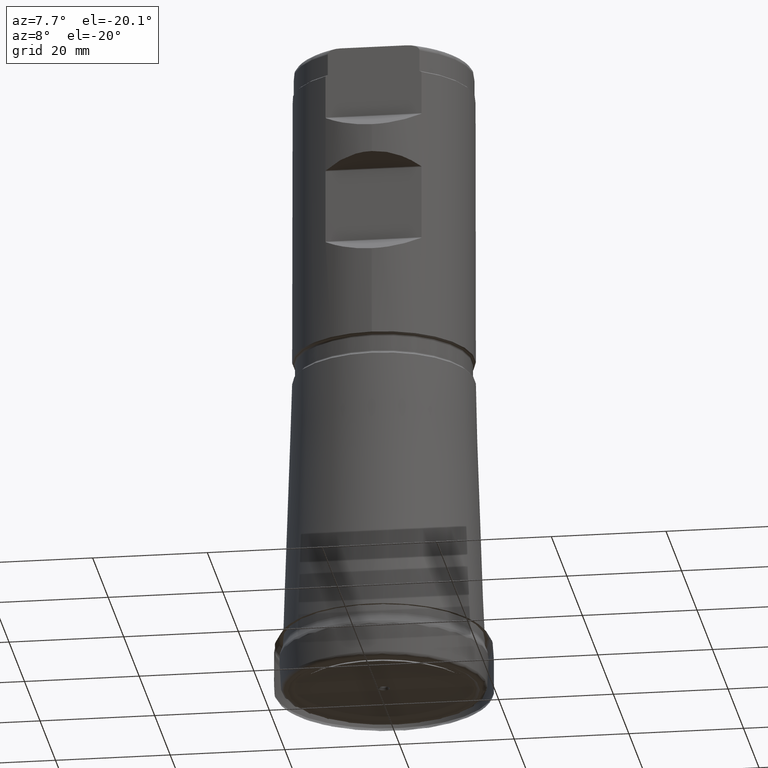
[diagram: clean part render]
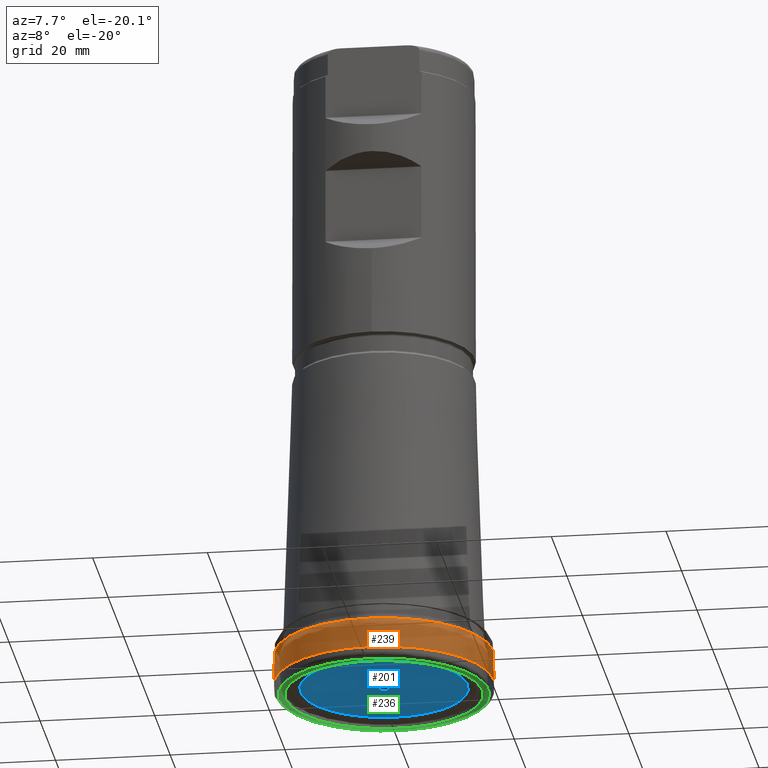
[diagram: same view with three faces highlighted in distinct colors, each labeled with its STEP entity id]
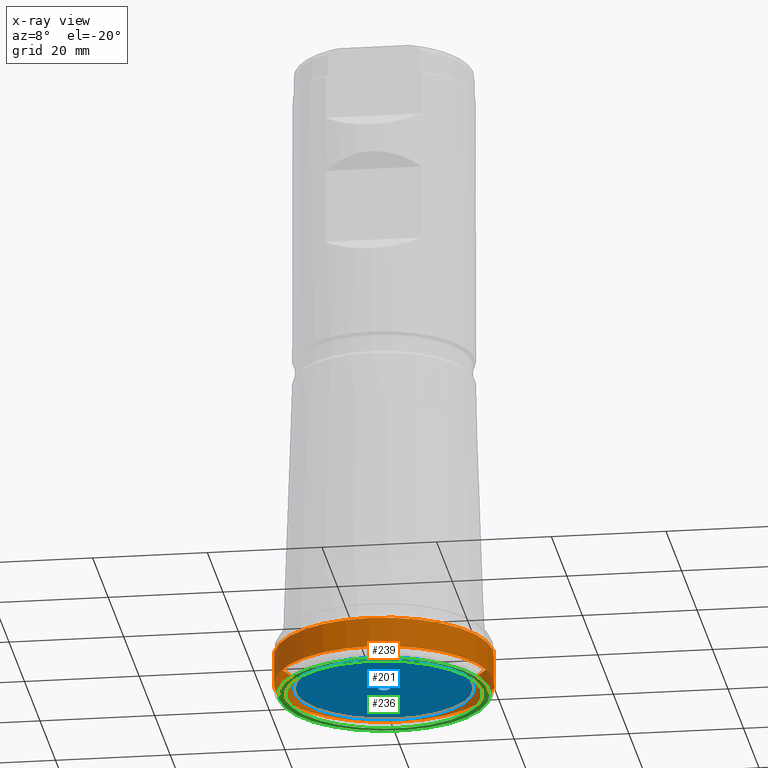
[diagram: x-ray of the same camera — body ghosted, the three highlighted faces saturated]
A machine part, auxiliary view with three faces highlighted in distinct colors.
The next image is the same camera in x-ray (body ghosted, the three faces saturated) — at least one of them is partly hidden behind the body in this view.
Their STEP definitions:

[orange] entity #239 — the highlighted face is a SurfaceOfRevolution surface.
#116=SURFACE_OF_REVOLUTION('',#873,#139);
#139=AXIS1_PLACEMENT('',#1758,#1147);
#239=ADVANCED_FACE('',(#356,#357),#116,.F.);
#356=FACE_BOUND('',#460,.T.);
#357=FACE_BOUND('',#461,.T.);
#460=EDGE_LOOP('',(#610));
#461=EDGE_LOOP('',(#611));
#610=ORIENTED_EDGE('',*,*,#767,.T.);
#611=ORIENTED_EDGE('',*,*,#768,.F.);
#692=VERTEX_POINT('',#1742);
#693=VERTEX_POINT('',#1751);
#767=EDGE_CURVE('',#692,#692,#816,.T.);
#768=EDGE_CURVE('',#693,#693,#817,.T.);
#816=CIRCLE('',#961,19.0820132478965);
#817=CIRCLE('',#962,19.0586699096301);
#873=B_SPLINE_CURVE_WITH_KNOTS('',5,(#1752,#1753,#1754,#1755,#1756,#1757),
 .UNSPECIFIED.,.F.,.F.,(6,6),(0.,1.),.UNSPECIFIED.);
#961=AXIS2_PLACEMENT_3D('',#1741,#1142,#1143);
#962=AXIS2_PLACEMENT_3D('',#1750,#1145,#1146);
#1142=DIRECTION('',(0.,0.,-1.));
#1143=DIRECTION('',(-1.,0.,0.));
#1145=DIRECTION('',(0.,0.,-1.));
#1146=DIRECTION('',(-1.,0.,0.));
#1147=DIRECTION('',(0.,0.,-1.));
#1741=CARTESIAN_POINT('',(0.,0.,1.90663757386945));
#1742=CARTESIAN_POINT('',(-19.0820132478965,0.,1.90663757386945));
#1750=CARTESIAN_POINT('',(0.,0.,7.14467338921246));
#1751=CARTESIAN_POINT('',(-19.0586699096301,0.,7.14467338921246));
#1752=CARTESIAN_POINT('',(19.0586698546054,0.,7.14467338802062));
#1753=CARTESIAN_POINT('',(19.0813569800898,5.69685995839574E-33,6.0972506526865));
#1754=CARTESIAN_POINT('',(19.0949780679181,-4.11365724224127E-31,5.04963136864352));
#1755=CARTESIAN_POINT('',(19.0995976155143,-6.07153216591883E-15,4.00192158757189));
#1756=CARTESIAN_POINT('',(19.0952656392813,-6.07153216591882E-15,2.9542231477598));
#1757=CARTESIAN_POINT('',(19.0820132478965,-6.07153216591882E-15,1.90663757386945));
#1758=CARTESIAN_POINT('',(0.,0.,0.));

[blue] entity #201 — the highlighted planar face has unit normal (0, -0, -1).
#178=PLANE('',#905);
#201=ADVANCED_FACE('',(#296,#297),#178,.T.);
#296=FACE_BOUND('',#394,.T.);
#297=FACE_BOUND('',#395,.T.);
#394=EDGE_LOOP('',(#520));
#395=EDGE_LOOP('',(#521));
#520=ORIENTED_EDGE('',*,*,#733,.T.);
#521=ORIENTED_EDGE('',*,*,#734,.T.);
#662=VERTEX_POINT('',#1563);
#663=VERTEX_POINT('',#1565);
#733=EDGE_CURVE('',#662,#662,#788,.T.);
#734=EDGE_CURVE('',#663,#663,#789,.T.);
#788=CIRCLE('',#903,1.);
#789=CIRCLE('',#904,15.5849874975539);
#903=AXIS2_PLACEMENT_3D('',#1562,#1013,#1014);
#904=AXIS2_PLACEMENT_3D('',#1564,#1015,#1016);
#905=AXIS2_PLACEMENT_3D('',#1566,#1017,#1018);
#1013=DIRECTION('',(0.,1.17145536458252E-15,1.));
#1014=DIRECTION('',(0.,-1.,1.0842021724855E-15));
#1015=DIRECTION('',(0.,-1.17145536458252E-15,-1.));
#1016=DIRECTION('',(0.,1.,-1.16872705227484E-15));
#1017=DIRECTION('',(0.,-1.17145536458252E-15,-1.));
#1018=DIRECTION('',(0.,1.,-1.17137202715334E-15));
#1562=CARTESIAN_POINT('',(0.,1.28860090104078E-15,1.1));
#1563=CARTESIAN_POINT('',(0.,-0.999999999999999,1.1));
#1564=CARTESIAN_POINT('',(0.,1.28860090104078E-15,1.1));
#1565=CARTESIAN_POINT('',(0.,15.5849874975539,1.09999999999998));
#1566=CARTESIAN_POINT('',(16.2047914002725,1.28860090104078E-15,1.1));

[green] entity #236 — the highlighted conical surface has half-angle 89.845 deg.
#176=CONICAL_SURFACE('',#959,18.3128691322381,89.8448392843263);
#236=ADVANCED_FACE('',(#350,#351),#176,.F.);
#350=FACE_BOUND('',#454,.T.);
#351=FACE_BOUND('',#455,.T.);
#454=EDGE_LOOP('',(#604));
#455=EDGE_LOOP('',(#605));
#604=ORIENTED_EDGE('',*,*,#764,.T.);
#605=ORIENTED_EDGE('',*,*,#765,.F.);
#689=VERTEX_POINT('',#1697);
#690=VERTEX_POINT('',#1718);
#764=EDGE_CURVE('',#689,#689,#813,.T.);
#765=EDGE_CURVE('',#690,#690,#814,.T.);
#813=CIRCLE('',#957,17.1607551394049);
#814=CIRCLE('',#958,18.3128691306994);
#957=AXIS2_PLACEMENT_3D('',#1696,#1132,#1133);
#958=AXIS2_PLACEMENT_3D('',#1717,#1135,#1136);
#959=AXIS2_PLACEMENT_3D('',#1719,#1137,#1138);
#1132=DIRECTION('',(0.,0.,-1.));
#1133=DIRECTION('',(-1.,0.,0.));
#1135=DIRECTION('',(0.,0.,-1.));
#1136=DIRECTION('',(-1.,0.,0.));
#1137=DIRECTION('',(0.,0.,1.));
#1138=DIRECTION('',(1.,0.,-4.43970979503724E-20));
#1696=CARTESIAN_POINT('',(0.,0.,-0.0229302558454496));
#1697=CARTESIAN_POINT('',(-17.1607551394049,0.,-0.0229302558454496));
#1717=CARTESIAN_POINT('',(0.,0.,-0.0198075635438758));
#1718=CARTESIAN_POINT('',(-18.3128691306994,0.,-0.0198075635438758));
#1719=CARTESIAN_POINT('',(0.,0.,-0.0198102482257103));